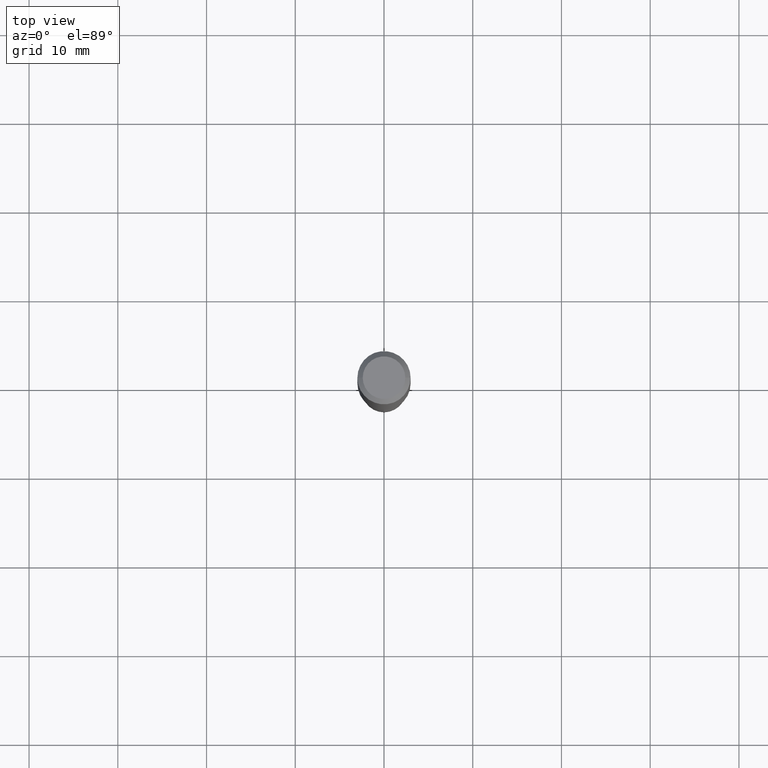
[diagram: clean part render]
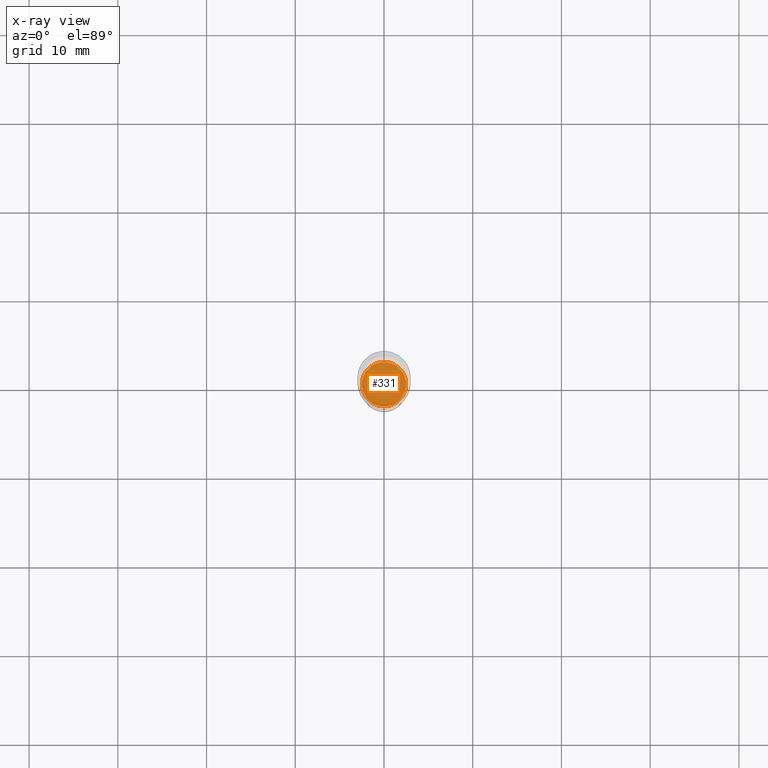
[diagram: x-ray — body ghosted, one internal face saturated and labeled with its STEP entity id]
A machine part, top view, then the same camera in x-ray: the body is ghosted and one INTERNAL B-rep face — a face not visible from any outside direction — is saturated and labeled: STEP entity #331.
In plain terms, the highlighted planar face has unit normal (0, -0, -1).
Its self-contained STEP definition (entity closure, byte-faithful):
#2 = CARTESIAN_POINT ( 'NONE',  ( -6.874726756181714407E-16, -0.09845000000000590779, -1.692899999999999849 ) ) ;
#12 = DIRECTION ( 'NONE',  ( -6.982962677686265922E-15, -1.000000000000000000, 2.774858297271979165E-15 ) ) ;
#20 = CARTESIAN_POINT ( 'NONE',  ( 4.139934141990818357E-29, -5.910728758527561864E-15, -1.692900000000000071 ) ) ;
#75 = ORIENTED_EDGE ( 'NONE', *, *, #316, .T. ) ;
#86 = VERTEX_POINT ( 'NONE', #2 ) ;
#96 = ORIENTED_EDGE ( 'NONE', *, *, #296, .T. ) ;
#123 = CARTESIAN_POINT ( 'NONE',  ( 4.139934141990818357E-29, -5.910728758527561864E-15, -1.692900000000000071 ) ) ;
#131 = AXIS2_PLACEMENT_3D ( 'NONE', #133, #314, #12 ) ;
#133 = CARTESIAN_POINT ( 'NONE',  ( 4.139934141990818357E-29, -5.910728758527561864E-15, -1.692900000000000071 ) ) ;
#230 = CIRCLE ( 'NONE', #459, 0.09844999999999999585 ) ;
#296 = EDGE_CURVE ( 'NONE', #403, #86, #337, .T. ) ;
#314 = DIRECTION ( 'NONE',  ( -2.445459427161350318E-29, 3.491494770139028640E-15, 1.000000000000000000 ) ) ;
#316 = EDGE_CURVE ( 'NONE', #86, #403, #230, .T. ) ;
#331 = ADVANCED_FACE ( 'NONE', ( #471 ), #467, .F. ) ;
#337 = CIRCLE ( 'NONE', #131, 0.09844999999999999585 ) ;
#350 = CARTESIAN_POINT ( 'NONE',  ( 6.995293233558962077E-16, 0.09844999999999408391, -1.692900000000000293 ) ) ;
#352 = DIRECTION ( 'NONE',  ( 2.445459427161349758E-29, -3.491494770139028640E-15, -1.000000000000000000 ) ) ;
#358 = DIRECTION ( 'NONE',  ( -6.982962677686265922E-15, -1.000000000000000000, 2.774858297271979165E-15 ) ) ;
#359 = EDGE_LOOP ( 'NONE', ( #75, #96 ) ) ;
#403 = VERTEX_POINT ( 'NONE', #350 ) ;
#427 = AXIS2_PLACEMENT_3D ( 'NONE', #123, #352, #473 ) ;
#431 = DIRECTION ( 'NONE',  ( -2.445459427161350318E-29, 3.491494770139028640E-15, 1.000000000000000000 ) ) ;
#459 = AXIS2_PLACEMENT_3D ( 'NONE', #20, #431, #358 ) ;
#467 = PLANE ( 'NONE',  #427 ) ;
#471 = FACE_OUTER_BOUND ( 'NONE', #359, .T. ) ;
#473 = DIRECTION ( 'NONE',  ( 6.982962677686265922E-15, 1.000000000000000000, -3.491494770139028640E-15 ) ) ;